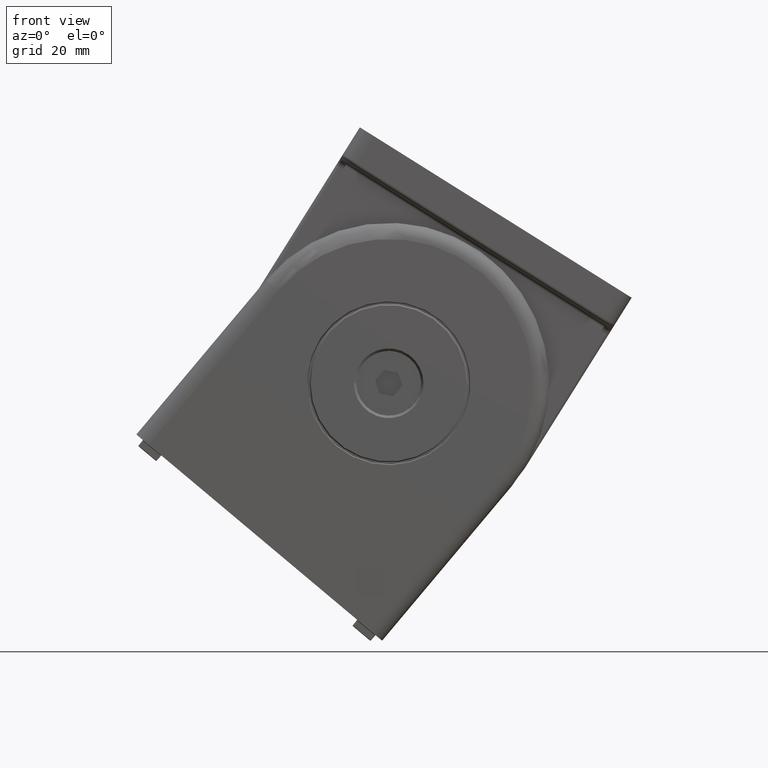
[diagram: clean part render]
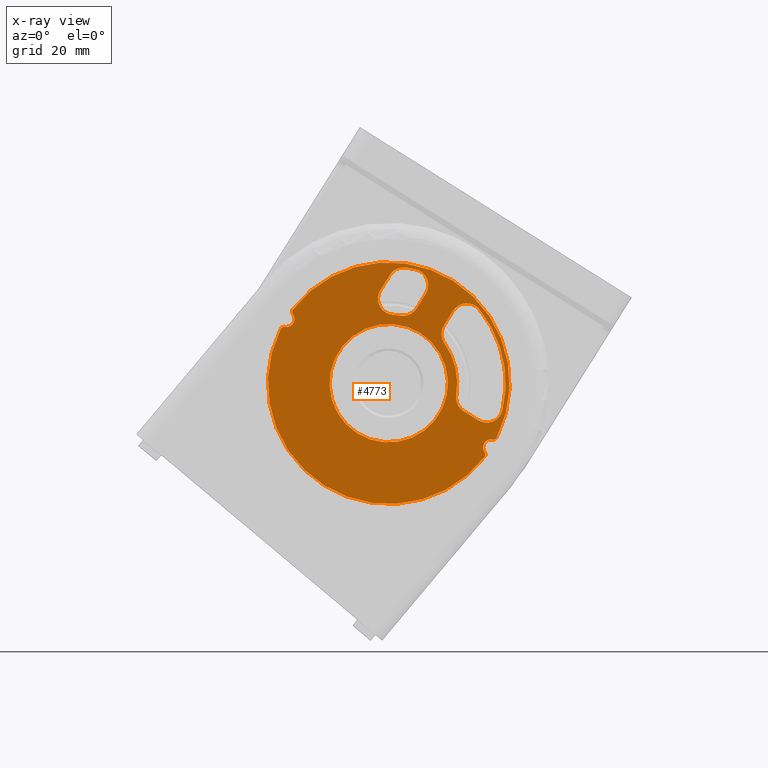
[diagram: x-ray — body ghosted, one internal face saturated and labeled with its STEP entity id]
A machine part, front view, then the same camera in x-ray: the body is ghosted and one INTERNAL B-rep face — a face not visible from any outside direction — is saturated and labeled: STEP entity #4773.
In plain terms, the highlighted planar face has unit normal (0, 1, 0).
Its self-contained STEP definition (entity closure, byte-faithful):
#203=PLANE('',#5293);
#439=LINE('',#9993,#744);
#440=LINE('',#10001,#745);
#441=LINE('',#10007,#746);
#442=LINE('',#10012,#747);
#744=VECTOR('',#6452,4.26895072570643);
#745=VECTOR('',#6459,4.26895072570643);
#746=VECTOR('',#6464,4.26895072570643);
#747=VECTOR('',#6469,4.44669316215982);
#1110=FACE_BOUND('',#1675,.T.);
#1111=FACE_BOUND('',#1676,.T.);
#1112=FACE_BOUND('',#1677,.T.);
#1303=FACE_OUTER_BOUND('',#1674,.T.);
#1674=EDGE_LOOP('',(#4001,#4002,#4003,#4004,#4005,#4006,#4007,#4008));
#1675=EDGE_LOOP('',(#4009));
#1676=EDGE_LOOP('',(#4010,#4011,#4012,#4013,#4014,#4015,#4016,#4017));
#1677=EDGE_LOOP('',(#4018,#4019,#4020,#4021,#4022,#4023,#4024,#4025));
#1892=CIRCLE('',#5055,14.6913486315578);
#1908=CIRCLE('',#5081,30.);
#1920=CIRCLE('',#5097,4.);
#1993=CIRCLE('',#5280,2.);
#1994=CIRCLE('',#5282,1.);
#1995=CIRCLE('',#5284,1.);
#1996=CIRCLE('',#5286,2.);
#1997=CIRCLE('',#5288,1.);
#1998=CIRCLE('',#5290,30.);
#1999=CIRCLE('',#5292,1.);
#2000=CIRCLE('',#5294,4.);
#2001=CIRCLE('',#5295,4.);
#2002=CIRCLE('',#5296,29.);
#2003=CIRCLE('',#5297,4.);
#2004=CIRCLE('',#5298,4.);
#2005=CIRCLE('',#5299,17.);
#2006=CIRCLE('',#5300,4.);
#2007=CIRCLE('',#5301,17.);
#2008=CIRCLE('',#5302,4.);
#2009=CIRCLE('',#5303,29.);
#2010=CIRCLE('',#5304,4.);
#2199=VERTEX_POINT('',#7925);
#2218=VERTEX_POINT('',#7974);
#2219=VERTEX_POINT('',#7976);
#2236=VERTEX_POINT('',#8014);
#2237=VERTEX_POINT('',#8016);
#2380=VERTEX_POINT('',#9963);
#2381=VERTEX_POINT('',#9965);
#2382=VERTEX_POINT('',#9971);
#2383=VERTEX_POINT('',#9975);
#2384=VERTEX_POINT('',#9979);
#2385=VERTEX_POINT('',#9983);
#2386=VERTEX_POINT('',#9989);
#2387=VERTEX_POINT('',#9990);
#2388=VERTEX_POINT('',#9992);
#2389=VERTEX_POINT('',#9994);
#2390=VERTEX_POINT('',#9996);
#2391=VERTEX_POINT('',#9998);
#2392=VERTEX_POINT('',#10000);
#2393=VERTEX_POINT('',#10002);
#2394=VERTEX_POINT('',#10005);
#2395=VERTEX_POINT('',#10006);
#2396=VERTEX_POINT('',#10008);
#2397=VERTEX_POINT('',#10011);
#2398=VERTEX_POINT('',#10013);
#2399=VERTEX_POINT('',#10015);
#2653=EDGE_CURVE('',#2199,#2199,#1892,.T.);
#2674=EDGE_CURVE('',#2218,#2219,#1908,.T.);
#2692=EDGE_CURVE('',#2236,#2237,#1920,.T.);
#2933=EDGE_CURVE('',#2381,#2380,#1993,.T.);
#2935=EDGE_CURVE('',#2219,#2380,#1994,.T.);
#2937=EDGE_CURVE('',#2382,#2218,#1995,.T.);
#2939=EDGE_CURVE('',#2382,#2383,#1996,.T.);
#2941=EDGE_CURVE('',#2384,#2383,#1997,.T.);
#2943=EDGE_CURVE('',#2385,#2384,#1998,.T.);
#2944=EDGE_CURVE('',#2381,#2385,#1999,.T.);
#2945=EDGE_CURVE('',#2386,#2387,#2000,.T.);
#2946=EDGE_CURVE('',#2388,#2386,#439,.T.);
#2947=EDGE_CURVE('',#2389,#2388,#2001,.T.);
#2948=EDGE_CURVE('',#2390,#2389,#2002,.T.);
#2949=EDGE_CURVE('',#2391,#2390,#2003,.T.);
#2950=EDGE_CURVE('',#2392,#2391,#440,.T.);
#2951=EDGE_CURVE('',#2393,#2392,#2004,.T.);
#2952=EDGE_CURVE('',#2387,#2393,#2005,.T.);
#2953=EDGE_CURVE('',#2394,#2395,#441,.T.);
#2954=EDGE_CURVE('',#2396,#2394,#2006,.T.);
#2955=EDGE_CURVE('',#2237,#2396,#2007,.T.);
#2956=EDGE_CURVE('',#2397,#2236,#442,.T.);
#2957=EDGE_CURVE('',#2398,#2397,#2008,.T.);
#2958=EDGE_CURVE('',#2399,#2398,#2009,.T.);
#2959=EDGE_CURVE('',#2395,#2399,#2010,.T.);
#4001=ORIENTED_EDGE('',*,*,#2935,.F.);
#4002=ORIENTED_EDGE('',*,*,#2674,.F.);
#4003=ORIENTED_EDGE('',*,*,#2937,.F.);
#4004=ORIENTED_EDGE('',*,*,#2939,.T.);
#4005=ORIENTED_EDGE('',*,*,#2941,.F.);
#4006=ORIENTED_EDGE('',*,*,#2943,.F.);
#4007=ORIENTED_EDGE('',*,*,#2944,.F.);
#4008=ORIENTED_EDGE('',*,*,#2933,.T.);
#4009=ORIENTED_EDGE('',*,*,#2653,.F.);
#4010=ORIENTED_EDGE('',*,*,#2945,.F.);
#4011=ORIENTED_EDGE('',*,*,#2946,.F.);
#4012=ORIENTED_EDGE('',*,*,#2947,.F.);
#4013=ORIENTED_EDGE('',*,*,#2948,.F.);
#4014=ORIENTED_EDGE('',*,*,#2949,.F.);
#4015=ORIENTED_EDGE('',*,*,#2950,.F.);
#4016=ORIENTED_EDGE('',*,*,#2951,.F.);
#4017=ORIENTED_EDGE('',*,*,#2952,.F.);
#4018=ORIENTED_EDGE('',*,*,#2953,.F.);
#4019=ORIENTED_EDGE('',*,*,#2954,.F.);
#4020=ORIENTED_EDGE('',*,*,#2955,.F.);
#4021=ORIENTED_EDGE('',*,*,#2692,.F.);
#4022=ORIENTED_EDGE('',*,*,#2956,.F.);
#4023=ORIENTED_EDGE('',*,*,#2957,.F.);
#4024=ORIENTED_EDGE('',*,*,#2958,.F.);
#4025=ORIENTED_EDGE('',*,*,#2959,.F.);
#4773=ADVANCED_FACE('',(#1303,#1110,#1111,#1112),#203,.F.);
#5055=AXIS2_PLACEMENT_3D('',#7926,#5835,#5836);
#5081=AXIS2_PLACEMENT_3D('',#7977,#5892,#5893);
#5097=AXIS2_PLACEMENT_3D('',#8017,#5930,#5931);
#5280=AXIS2_PLACEMENT_3D('',#9966,#6417,#6418);
#5282=AXIS2_PLACEMENT_3D('',#9969,#6422,#6423);
#5284=AXIS2_PLACEMENT_3D('',#9973,#6427,#6428);
#5286=AXIS2_PLACEMENT_3D('',#9977,#6432,#6433);
#5288=AXIS2_PLACEMENT_3D('',#9981,#6437,#6438);
#5290=AXIS2_PLACEMENT_3D('',#9985,#6442,#6443);
#5292=AXIS2_PLACEMENT_3D('',#9987,#6446,#6447);
#5293=AXIS2_PLACEMENT_3D('',#9988,#6448,#6449);
#5294=AXIS2_PLACEMENT_3D('',#9991,#6450,#6451);
#5295=AXIS2_PLACEMENT_3D('',#9995,#6453,#6454);
#5296=AXIS2_PLACEMENT_3D('',#9997,#6455,#6456);
#5297=AXIS2_PLACEMENT_3D('',#9999,#6457,#6458);
#5298=AXIS2_PLACEMENT_3D('',#10003,#6460,#6461);
#5299=AXIS2_PLACEMENT_3D('',#10004,#6462,#6463);
#5300=AXIS2_PLACEMENT_3D('',#10009,#6465,#6466);
#5301=AXIS2_PLACEMENT_3D('',#10010,#6467,#6468);
#5302=AXIS2_PLACEMENT_3D('',#10014,#6470,#6471);
#5303=AXIS2_PLACEMENT_3D('',#10016,#6472,#6473);
#5304=AXIS2_PLACEMENT_3D('',#10017,#6474,#6475);
#5835=DIRECTION('center_axis',(-1.51139701666372E-16,-1.,-5.55278255609424E-33));
#5836=DIRECTION('ref_axis',(-1.69013934887493E-16,0.,-1.));
#5892=DIRECTION('center_axis',(0.,1.,0.));
#5893=DIRECTION('ref_axis',(0.,0.,-1.));
#5930=DIRECTION('center_axis',(0.,-1.,0.));
#5931=DIRECTION('ref_axis',(0.,0.,-1.));
#6417=DIRECTION('center_axis',(0.,1.,0.));
#6418=DIRECTION('ref_axis',(1.73472347597681E-15,0.,-1.));
#6422=DIRECTION('center_axis',(0.,1.,0.));
#6423=DIRECTION('ref_axis',(0.,0.,1.));
#6427=DIRECTION('center_axis',(0.,1.,0.));
#6428=DIRECTION('ref_axis',(-3.46944695195361E-15,0.,-1.));
#6432=DIRECTION('center_axis',(0.,1.,0.));
#6433=DIRECTION('ref_axis',(0.,0.,-1.));
#6437=DIRECTION('center_axis',(0.,1.,0.));
#6438=DIRECTION('ref_axis',(0.,0.,1.));
#6442=DIRECTION('center_axis',(0.,1.,0.));
#6443=DIRECTION('ref_axis',(0.,0.,-1.));
#6446=DIRECTION('center_axis',(0.,1.,0.));
#6447=DIRECTION('ref_axis',(0.,0.,-1.));
#6448=DIRECTION('center_axis',(0.,1.,0.));
#6449=DIRECTION('ref_axis',(0.,0.,1.));
#6450=DIRECTION('center_axis',(0.,-1.,0.));
#6451=DIRECTION('ref_axis',(0.,0.,-1.));
#6452=DIRECTION('',(0.,0.,-1.));
#6453=DIRECTION('center_axis',(0.,-1.,0.));
#6454=DIRECTION('ref_axis',(0.,0.,-1.));
#6455=DIRECTION('center_axis',(0.,-1.,0.));
#6456=DIRECTION('ref_axis',(0.,0.,-1.));
#6457=DIRECTION('center_axis',(0.,-1.,0.));
#6458=DIRECTION('ref_axis',(0.,0.,-1.));
#6459=DIRECTION('',(1.,0.,0.));
#6460=DIRECTION('center_axis',(0.,-1.,0.));
#6461=DIRECTION('ref_axis',(0.,0.,-1.));
#6462=DIRECTION('center_axis',(0.,1.,0.));
#6463=DIRECTION('ref_axis',(0.,0.,-1.));
#6464=DIRECTION('',(0.,0.,1.));
#6465=DIRECTION('center_axis',(0.,-1.,0.));
#6466=DIRECTION('ref_axis',(0.,0.,-1.));
#6467=DIRECTION('center_axis',(0.,1.,0.));
#6468=DIRECTION('ref_axis',(0.,0.,-1.));
#6469=DIRECTION('',(0.,0.,-1.));
#6470=DIRECTION('center_axis',(0.,-1.,0.));
#6471=DIRECTION('ref_axis',(0.,0.,-1.));
#6472=DIRECTION('center_axis',(0.,-1.,0.));
#6473=DIRECTION('ref_axis',(0.,0.,-1.));
#6474=DIRECTION('center_axis',(0.,-1.,0.));
#6475=DIRECTION('ref_axis',(0.,0.,-1.));
#7925=CARTESIAN_POINT('',(5.78808919196594E-15,-14.4,-26.3086513684422));
#7926=CARTESIAN_POINT('Origin',(9.35063461759723E-15,-14.4,-41.));
#7974=CARTESIAN_POINT('',(29.8620689655173,-14.4,-43.8734712628965));
#7976=CARTESIAN_POINT('',(-29.8620689655172,-14.4,-43.8734712628965));
#7977=CARTESIAN_POINT('Origin',(5.02088605067175E-15,-14.4,-41.));
#8014=CARTESIAN_POINT('',(-14.,-14.4,-22.5338146873806));
#8016=CARTESIAN_POINT('',(-8.09523809523809,-14.4,-26.0511833183557));
#8017=CARTESIAN_POINT('Origin',(-10.,-14.4,-22.5338146873806));
#9963=CARTESIAN_POINT('',(-29.2444444444444,-14.4,-42.8517925916444));
#9965=CARTESIAN_POINT('',(-29.2444444444444,-14.4,-39.1482074083556));
#9966=CARTESIAN_POINT('Origin',(-30.,-14.4,-41.));
#9969=CARTESIAN_POINT('Origin',(-28.8666666666667,-14.4,-43.7776888874666));
#9971=CARTESIAN_POINT('',(29.2444444444445,-14.4,-42.8517925916444));
#9973=CARTESIAN_POINT('Origin',(28.8666666666667,-14.4,-43.7776888874666));
#9975=CARTESIAN_POINT('',(29.2444444444445,-14.4,-39.1482074083556));
#9977=CARTESIAN_POINT('Origin',(30.,-14.4,-41.));
#9979=CARTESIAN_POINT('',(29.8620689655172,-14.4,-38.1265287371035));
#9981=CARTESIAN_POINT('Origin',(28.8666666666667,-14.4,-38.2223111125334));
#9983=CARTESIAN_POINT('',(-29.8620689655172,-14.4,-38.1265287371035));
#9985=CARTESIAN_POINT('Origin',(5.02088605067175E-15,-14.4,-41.));
#9987=CARTESIAN_POINT('Origin',(-28.8666666666667,-14.4,-38.2223111125334));
#9988=CARTESIAN_POINT('Origin',(39.8,-14.4,-8.81716574752111E-16));
#9989=CARTESIAN_POINT('',(4.,-14.4,-21.5835121610524));
#9990=CARTESIAN_POINT('',(6.47619047619048,-14.4,-25.2818907970424));
#9991=CARTESIAN_POINT('Origin',(8.,-14.4,-21.5835121610524));
#9992=CARTESIAN_POINT('',(4.,-14.4,-17.314561435346));
#9993=CARTESIAN_POINT('',(4.,-14.4,-8.81716574752111E-16));
#9994=CARTESIAN_POINT('',(9.28,-14.4,-13.5248912650013));
#9995=CARTESIAN_POINT('Origin',(8.,-14.4,-17.314561435346));
#9996=CARTESIAN_POINT('',(27.4751087349986,-14.4,-31.7199999999999));
#9997=CARTESIAN_POINT('Origin',(5.02088605067175E-15,-14.4,-41.));
#9998=CARTESIAN_POINT('',(23.685438564654,-14.4,-37.));
#9999=CARTESIAN_POINT('Origin',(23.685438564654,-14.4,-32.9999999999999));
#10000=CARTESIAN_POINT('',(19.4164878389476,-14.4,-37.));
#10001=CARTESIAN_POINT('',(39.8,-14.4,-37.));
#10002=CARTESIAN_POINT('',(15.7181092029576,-14.4,-34.5238095238095));
#10003=CARTESIAN_POINT('Origin',(19.4164878389476,-14.4,-32.9999999999999));
#10004=CARTESIAN_POINT('Origin',(5.02088605067175E-15,-14.4,-41.));
#10005=CARTESIAN_POINT('',(-4.,-14.4,-21.5835121610524));
#10006=CARTESIAN_POINT('',(-4.,-14.4,-17.314561435346));
#10007=CARTESIAN_POINT('',(-4.,-14.4,-8.81716574752111E-16));
#10008=CARTESIAN_POINT('',(-6.47619047619048,-14.4,-25.2818907970424));
#10009=CARTESIAN_POINT('Origin',(-8.,-14.4,-21.5835121610524));
#10010=CARTESIAN_POINT('Origin',(-5.02088605067175E-15,-14.4,-41.));
#10011=CARTESIAN_POINT('',(-14.,-14.4,-18.0871215252208));
#10012=CARTESIAN_POINT('',(-14.,-14.4,-8.81716574752111E-16));
#10013=CARTESIAN_POINT('',(-11.6,-14.4,-14.4210609692561));
#10014=CARTESIAN_POINT('Origin',(-10.,-14.4,-18.0871215252208));
#10015=CARTESIAN_POINT('',(-9.28,-14.4,-13.5248912650013));
#10016=CARTESIAN_POINT('Origin',(-5.02088605067175E-15,-14.4,-41.));
#10017=CARTESIAN_POINT('Origin',(-8.,-14.4,-17.314561435346));